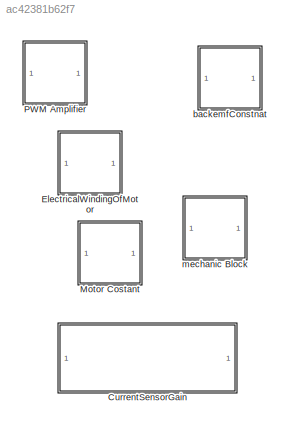
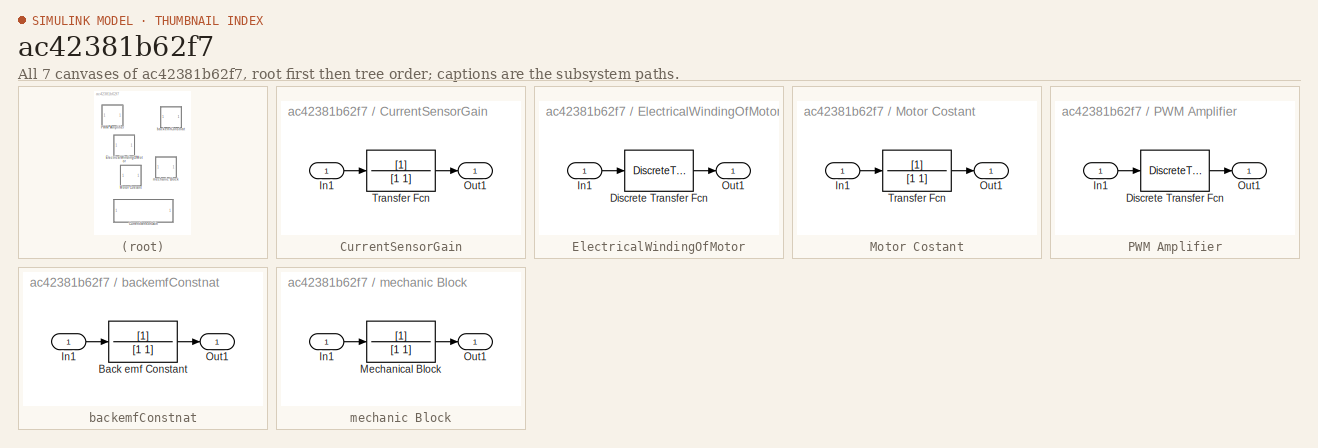
[diagram: thumbnail index - all 7 canvases of the model, root first then tree order]
MODEL slx_ac42381b62f7
KIND library
CONFIG AbsTol = auto
CONFIG EnableMultiTasking = off
CONFIG FixedStep = auto
CONFIG MaxStep = auto
CONFIG MinStep = auto
CONFIG RelTol = 1e-3
CONFIG SampleTimeConstraint = Unconstrained
CONFIG Solver = VariableStepAuto
CONFIG SolverName = VariableStepAuto
CONFIG StartTime = 0.0
CONFIG StopTime = 10.0
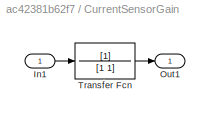
BLOCK [SubSystem] CurrentSensorGain
  Ports = [1, 1]
  RequestExecContextInheritance = off
BLOCK [Inport] CurrentSensorGain/In1
BLOCK [Outport] CurrentSensorGain/Out1
BLOCK [TransferFcn] CurrentSensorGain/Transfer Fcn
  Denominator = [1 1]
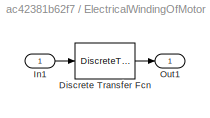
BLOCK [SubSystem] ElectricalWindingOfMotor
  Ports = [1, 1]
  RequestExecContextInheritance = off
BLOCK [DiscreteTransferFcn] ElectricalWindingOfMotor/Discrete Transfer Fcn
  InputPortMap = u0
  Ports = [1, 1]
BLOCK [Inport] ElectricalWindingOfMotor/In1
BLOCK [Outport] ElectricalWindingOfMotor/Out1
BLOCK [SubSystem] Motor Costant
  Ports = [1, 1]
  RequestExecContextInheritance = off
BLOCK [Inport] Motor Costant/In1
BLOCK [Outport] Motor Costant/Out1
BLOCK [TransferFcn] Motor Costant/Transfer Fcn
  Denominator = [1 1]
BLOCK [SubSystem] PWM Amplifier
  Ports = [1, 1]
  RequestExecContextInheritance = off
BLOCK [DiscreteTransferFcn] PWM Amplifier/Discrete Transfer Fcn
  InputPortMap = u0
  Ports = [1, 1]
BLOCK [Inport] PWM Amplifier/In1
BLOCK [Outport] PWM Amplifier/Out1
BLOCK [SubSystem] backemfConstnat
  NameLocation = top
  Ports = [1, 1]
  RequestExecContextInheritance = off
BLOCK [TransferFcn] backemfConstnat/Back emf Constant
  Denominator = [1 1]
BLOCK [Inport] backemfConstnat/In1
BLOCK [Outport] backemfConstnat/Out1
BLOCK [SubSystem] mechanic Block
  Ports = [1, 1]
  RequestExecContextInheritance = off
BLOCK [Inport] mechanic Block/In1
BLOCK [TransferFcn] mechanic Block/Mechanical Block
  Denominator = [1 1]
BLOCK [Outport] mechanic Block/Out1
LINE CurrentSensorGain/In1:1 -> CurrentSensorGain/Transfer Fcn:1
LINE CurrentSensorGain/Transfer Fcn:1 -> CurrentSensorGain/Out1:1
LINE ElectricalWindingOfMotor/Discrete Transfer Fcn:1 -> ElectricalWindingOfMotor/Out1:1
LINE ElectricalWindingOfMotor/In1:1 -> ElectricalWindingOfMotor/Discrete Transfer Fcn:1
LINE Motor Costant/In1:1 -> Motor Costant/Transfer Fcn:1
LINE Motor Costant/Transfer Fcn:1 -> Motor Costant/Out1:1
LINE PWM Amplifier/Discrete Transfer Fcn:1 -> PWM Amplifier/Out1:1
LINE PWM Amplifier/In1:1 -> PWM Amplifier/Discrete Transfer Fcn:1
LINE backemfConstnat/Back emf Constant:1 -> backemfConstnat/Out1:1
LINE backemfConstnat/In1:1 -> backemfConstnat/Back emf Constant:1
LINE mechanic Block/In1:1 -> mechanic Block/Mechanical Block:1
LINE mechanic Block/Mechanical Block:1 -> mechanic Block/Out1:1
